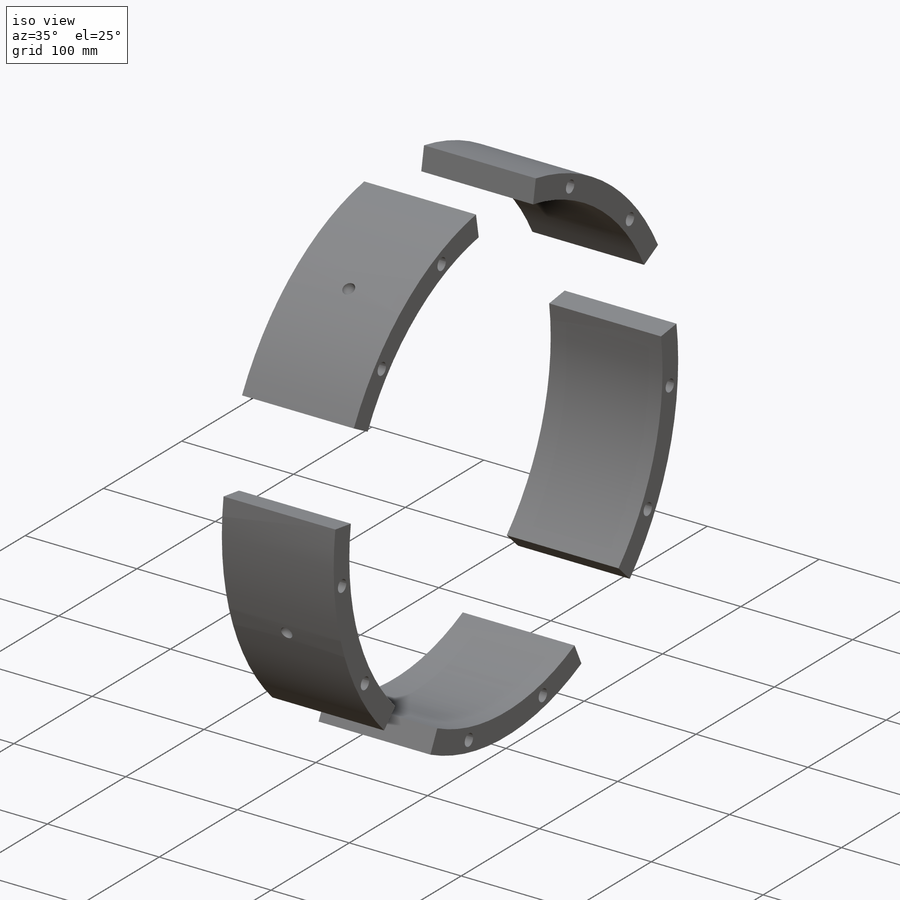
[diagram: iso view]
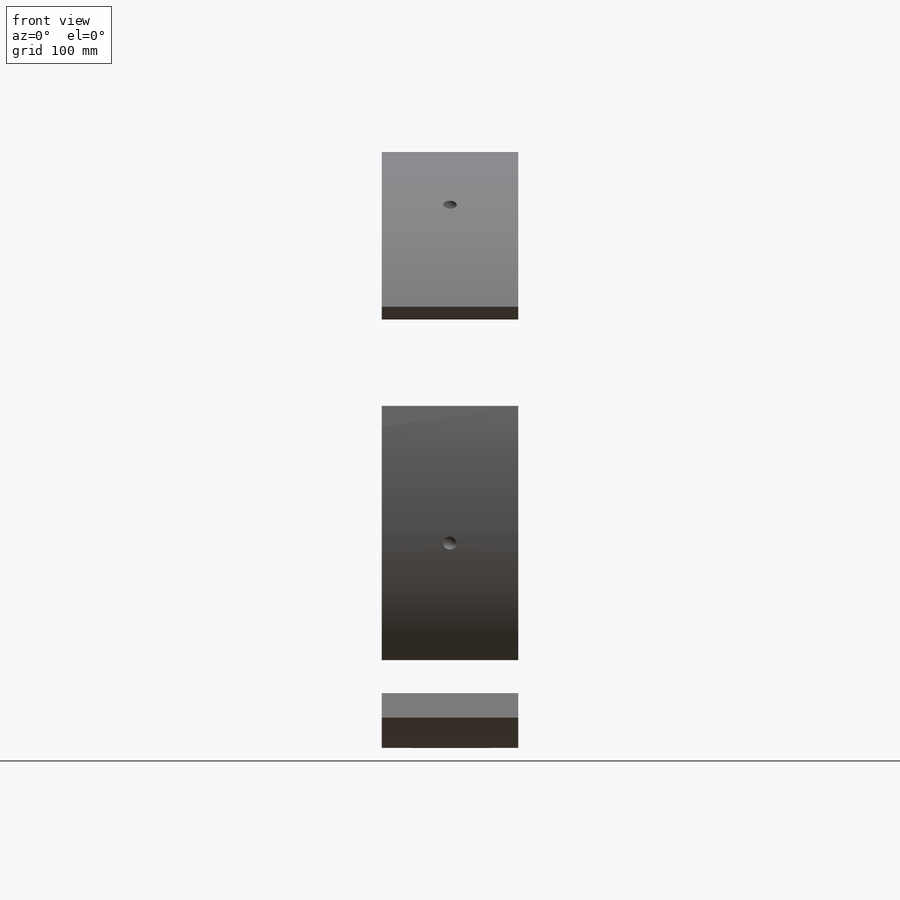
[diagram: front view]
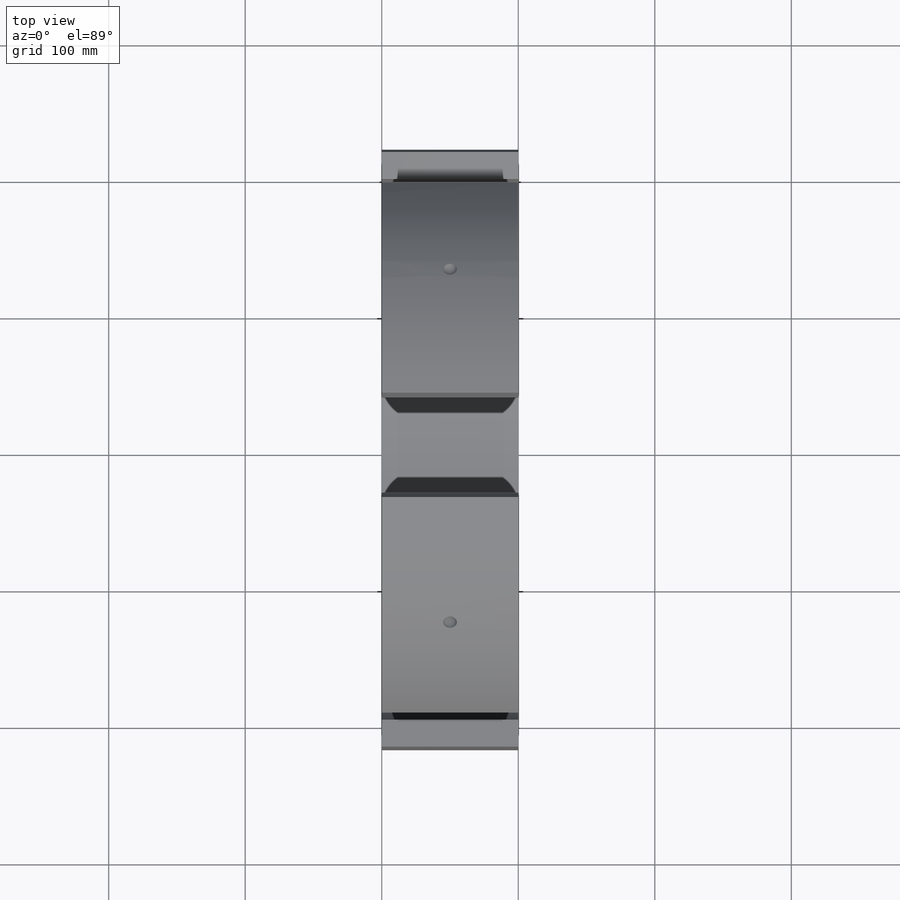
[diagram: top view]
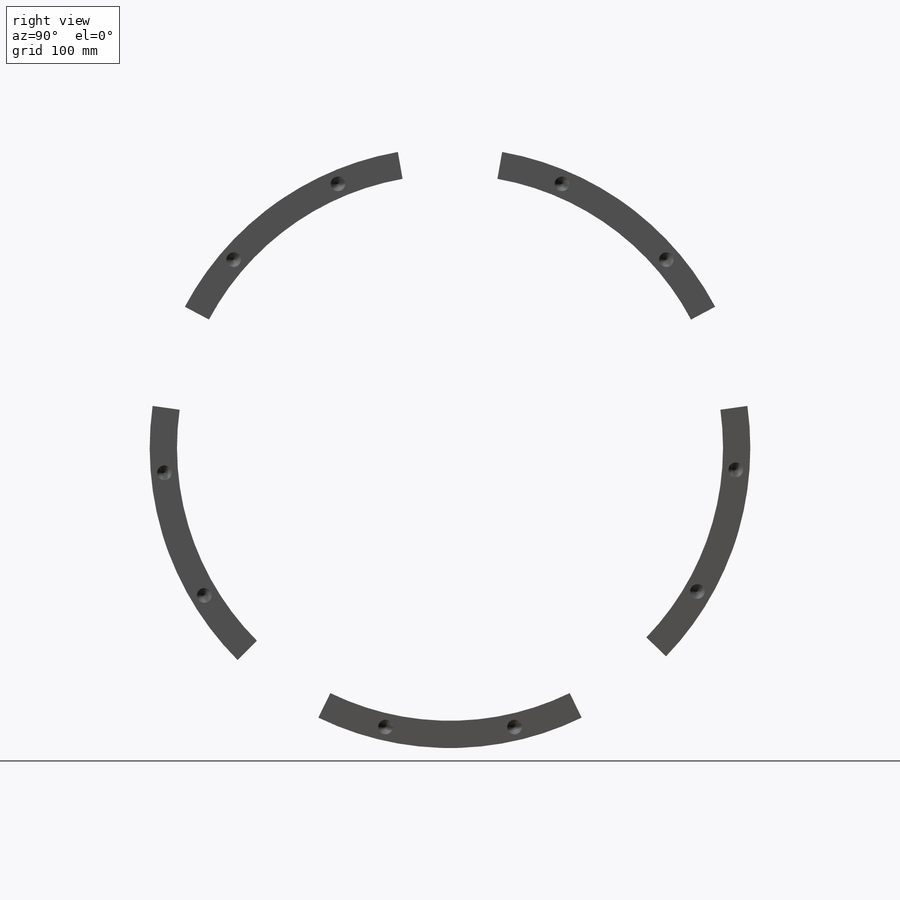
[diagram: right view]
SOLIDWORKS PART (.sldprt)
format: sldprt  version: not decoded by parser v0  size: 317,952 bytes
history: native  units: mm
features: sketch x9, plane x6, cut_revolve x5, material x1, extrude x1, hole x1 (+12 scaffold rows collapsed)
feature tree (35):
  scaffold x12  (default folders/planes/origin — collapsed)
  material  "Material <not specified>"
  sketch  "Sketch1"  dims[c1.D1=~266.607392mm c2.D1=172.0deg]
  extrude  "Boss-Extrude1"  Depth=100mm
  plane  "Plane1"
  plane  "Plane2"
  plane  "Plane3"
  plane  "Plane4"
  plane  "Plane5"
  sketch  "Sketch2"  dims[D1=1.0mm]
  sketch  "Sketch4"  dims[D1=~9.927825mm]
  sketch  "Sketch5"  dims[D1=~7.54015mm]
  sketch  "Sketch6"  dims[D1=~16.897846mm]
  sketch  "Sketch7"  dims[D1=~14.550698mm]
  cut_revolve  "Cut-Revolve1"  Angle=360deg
  cut_revolve  "Cut-Revolve2"  Angle=360deg
  cut_revolve  "Cut-Revolve3"  Angle=360deg
  cut_revolve  "Cut-Revolve4"  Angle=360deg
  cut_revolve  "Cut-Revolve5"  Angle=360deg
  plane  "Plane6"  Offset=10mm
  sketch  "Sketch8"  dims[c1.D1=~219.038481mm c2.D1=77.0deg]
  hole  "1/2-13 Tapped Hole3"  Diameter=10.71626mm Depth=65.9mm
  sketch  "3DSketch4"
  sketch  "Sketch13"  dims[hole-wizard template sketch: 47 standard entries collapsed; hole parameters kept: c15.Tap Drill Depth=65.9mm c15.D3=~14.816244mm c15.Drill Angle=118.0deg]
decode coverage: 15 of 16 modeling features carry decoded parameters
note: ~ marks probable driven/reference dimensions
note: suppression state not decoded; provenance and decode notes live in map.json
